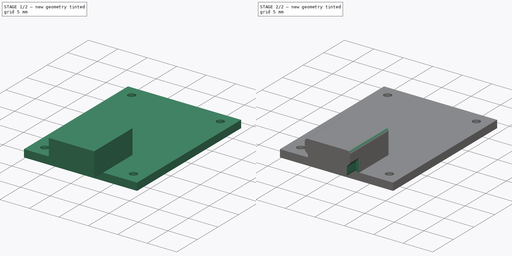
[diagram: build sequence overview — one tinted view per stage of 2, left to right]
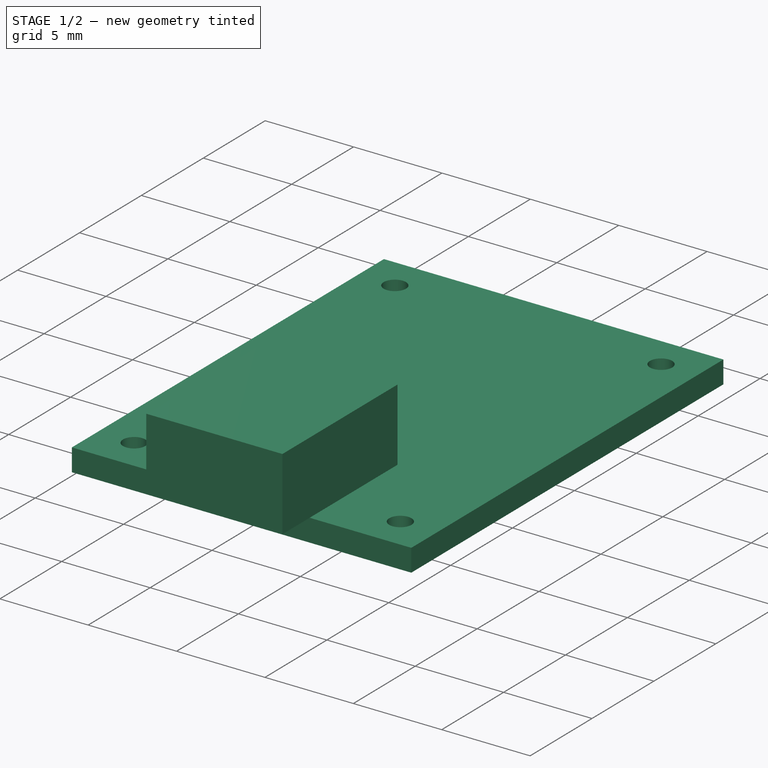
[diagram: stage 1 of 2 — iso view after this stage's code; geometry added in this stage tinted green]
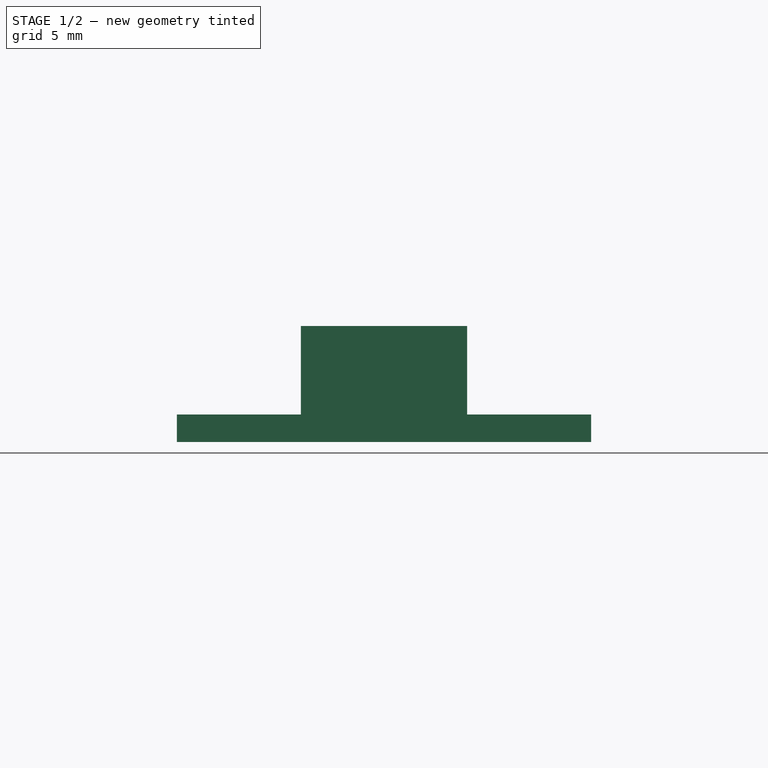
[diagram: stage 1 of 2 — front view after this stage's code; geometry added in this stage tinted green]
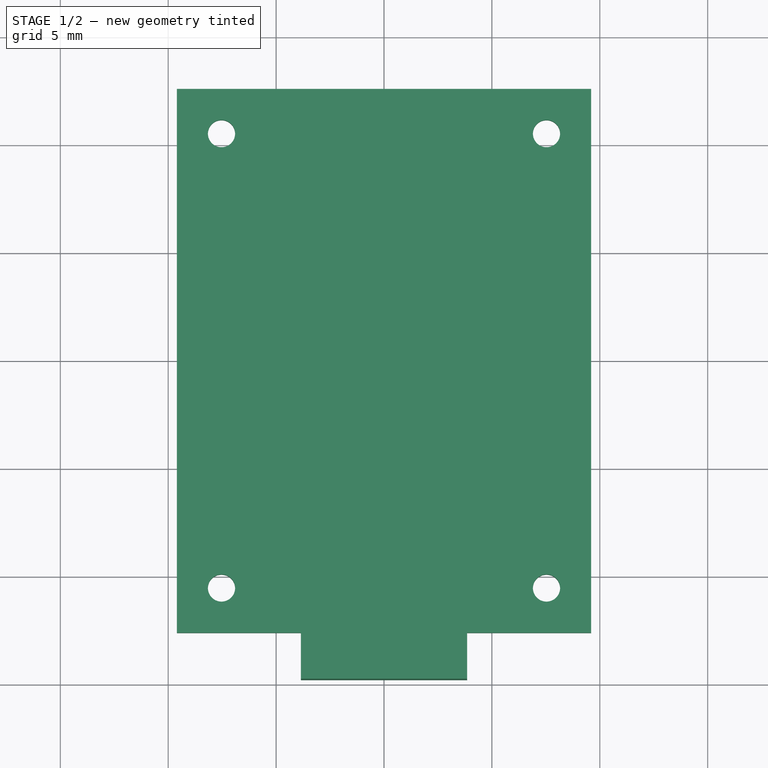
[diagram: stage 1 of 2 — top view after this stage's code; geometry added in this stage tinted green]
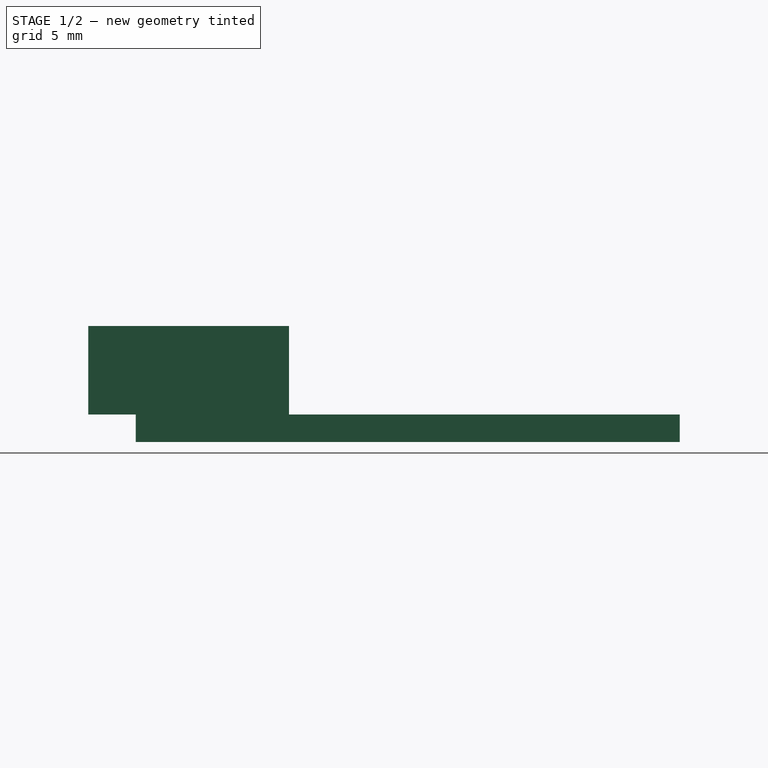
[diagram: stage 1 of 2 — right view after this stage's code; geometry added in this stage tinted green]
FCSTD DOCUMENT  (FreeCAD 0.16R5166 (Git))
Label: battery_charger
License: CreativeCommons Attribution-ShareAlike
LicenseURL: http://creativecommons.org/licenses/by-sa/4.0/
objects: Sketcher::SketchObject×3, PartDesign::Pad×2, PartDesign::Fillet×1, PartDesign::Pocket×1
note: 10 computed .brp shape members not serialized (recipe doc carries the construction recipe); baked Part::Feature solids carry a one-line shape summary decoded from their .brp

FEATURE [Sketcher::SketchObject] Sketch
  sketch-geometry (8):
    g0: LineSegment StartX=-9.6 StartY=12.605 StartZ=0 EndX=9.6 EndY=12.605 EndZ=0
    g1: LineSegment StartX=9.6 StartY=12.605 StartZ=0 EndX=9.6 EndY=-12.605 EndZ=0
    g2: LineSegment StartX=9.6 StartY=-12.605 StartZ=0 EndX=-9.6 EndY=-12.605 EndZ=0
    g3: LineSegment StartX=-9.6 StartY=-12.605 StartZ=0 EndX=-9.6 EndY=12.605 EndZ=0
    g4: Circle CenterX=-7.53 CenterY=10.53 CenterZ=0 NormalX=0 NormalY=0 NormalZ=1 Radius=0.63
    g5: Circle CenterX=7.53 CenterY=10.53 CenterZ=0 NormalX=0 NormalY=0 NormalZ=1 Radius=0.63
    g6: Circle CenterX=7.53 CenterY=-10.53 CenterZ=0 NormalX=0 NormalY=0 NormalZ=1 Radius=0.63
    g7: Circle CenterX=-7.53 CenterY=-10.53 CenterZ=0 NormalX=0 NormalY=0 NormalZ=1 Radius=0.63
  constraints (21):
    c: Coincident(g0,g1)
    c: Coincident(g1,g2)
    c: Coincident(g2,g3)
    c: Coincident(g3,g0)
    c: Horizontal(g0)
    c: Horizontal(g2)
    c: Vertical(g1)
    c: Vertical(g3)
    c: DistanceX(g0) = 19.2
    c: DistanceY(g1) = -25.21
    c: Symmetric(g2,g0,g-1)
    c: Symmetric(g6,g4,g-1)
    c: Symmetric(g5,g7,g-1)
    c: Equal(g5,g4)
    c: Equal(g4,g7)
    c: Equal(g7,g6)
    c: Radius(g7) = 0.63
    c: Symmetric(g4,g5,g-2)
    c: Symmetric(g4,g7,g-1)
    c: DistanceX(g4,g5) = 15.06
    c: DistanceY(g4,g7) = -21.06
FEATURE [PartDesign::Pad] Pad  label="base"
  Length = 1.27
  Length2 = 100
  Midplane = true
  Sketch = -> Sketch
  Type = 0
FEATURE [Sketcher::SketchObject] Sketch001
  ExternalGeometry = -> [Pad]
  Placement = pos=(0,0,0.635) rot=(0,0,1;0rad)
  Support = -> Pad [Face10]
  sketch-geometry (4):
    g0: LineSegment StartX=-3.85 StartY=-5.505 StartZ=0 EndX=3.85 EndY=-5.505 EndZ=0
    g1: LineSegment StartX=3.85 StartY=-5.505 StartZ=0 EndX=3.85 EndY=-14.805 EndZ=0
    g2: LineSegment StartX=3.85 StartY=-14.805 StartZ=0 EndX=-3.85 EndY=-14.805 EndZ=0
    g3: LineSegment StartX=-3.85 StartY=-14.805 StartZ=0 EndX=-3.85 EndY=-5.505 EndZ=0
  constraints (12):
    c: Coincident(g0,g1)
    c: Coincident(g1,g2)
    c: Coincident(g2,g3)
    c: Coincident(g3,g0)
    c: Horizontal(g0)
    c: Horizontal(g2)
    c: Vertical(g1)
    c: Vertical(g3)
    c: Symmetric(g2,g1,g-2)
    c: DistanceY(g1) = -9.3
    c: DistanceX(g2) = -7.7
    c: DistanceY(g2,g-3) = 2.2
FEATURE [PartDesign::Pad] Pad001  label="battery_charger_c"
  Length = 4.1
  Length2 = 100
  Sketch = -> Sketch001
  Type = 0
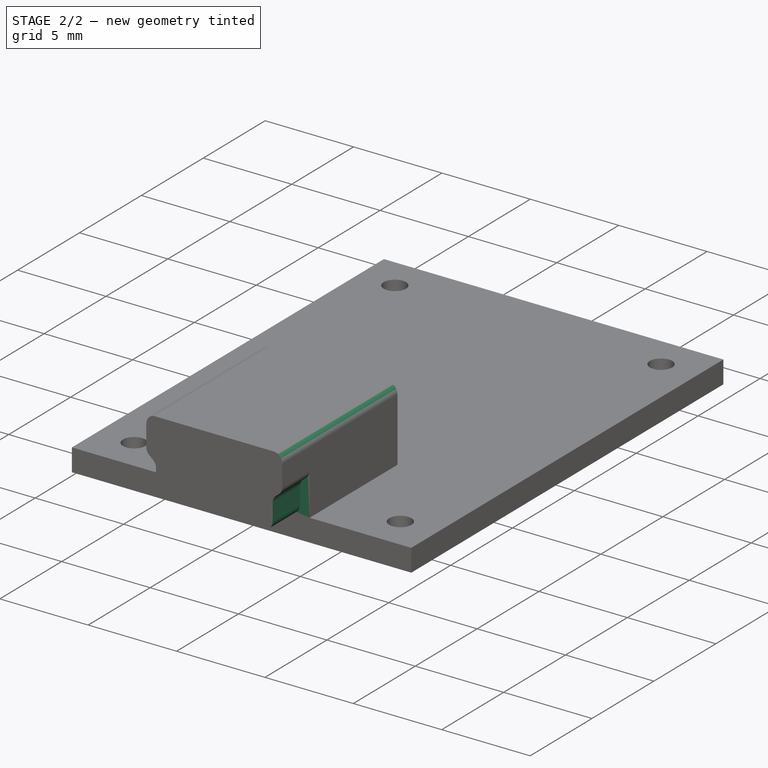
[diagram: stage 2 of 2 — iso view after this stage's code; geometry added in this stage tinted green]
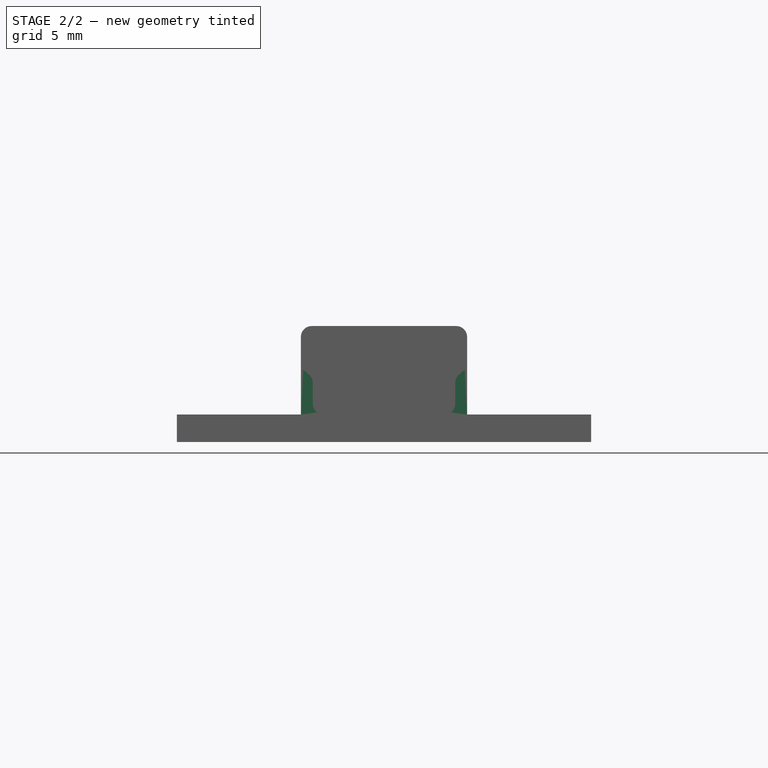
[diagram: stage 2 of 2 — front view after this stage's code; geometry added in this stage tinted green]
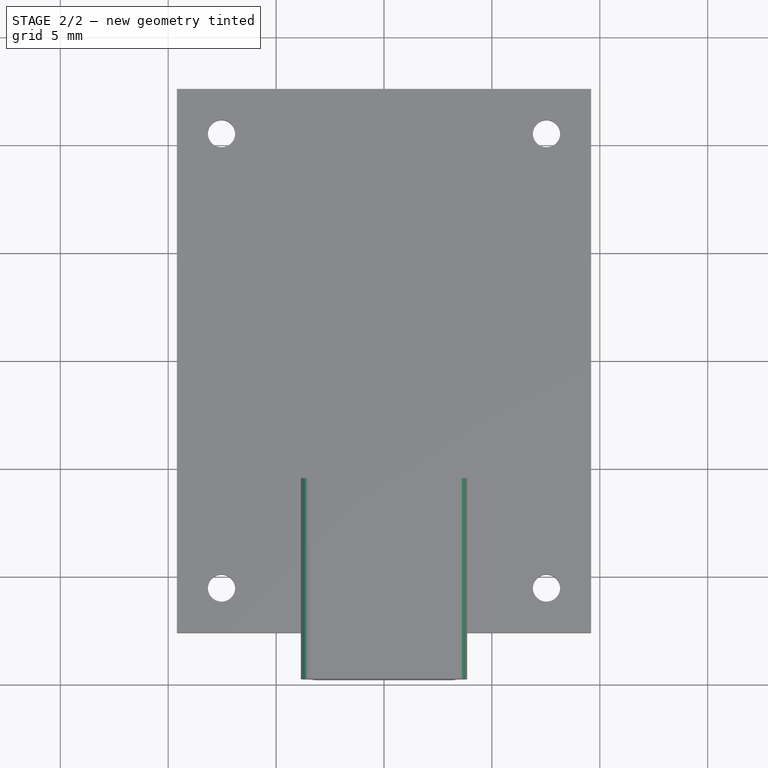
[diagram: stage 2 of 2 — top view after this stage's code; geometry added in this stage tinted green]
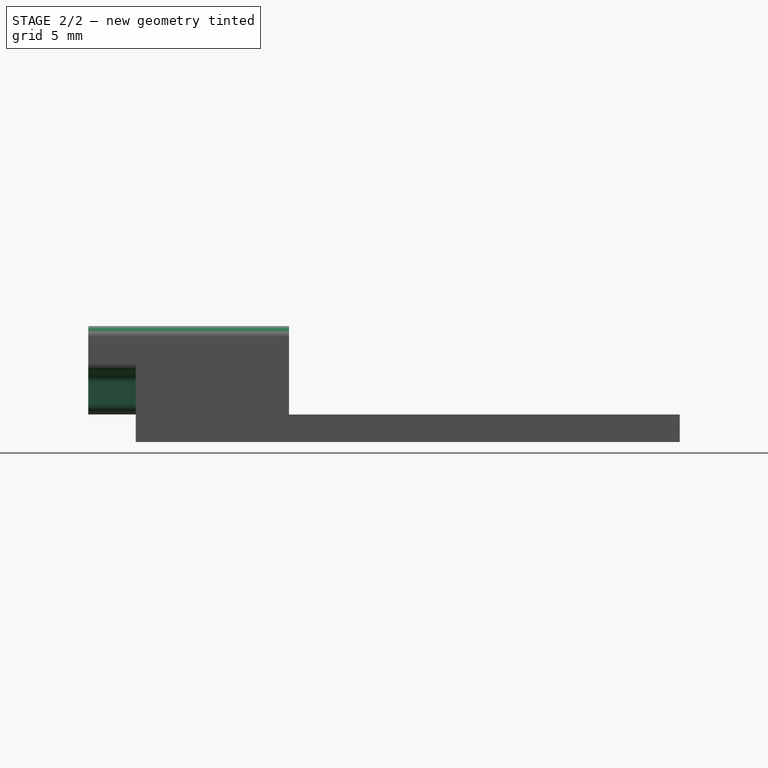
[diagram: stage 2 of 2 — right view after this stage's code; geometry added in this stage tinted green]
FEATURE [PartDesign::Fillet] Fillet
  Base = -> Pad001 [Edge38,Edge31]
  Radius = 0.5
FEATURE [Sketcher::SketchObject] Sketch002
  ExternalGeometry = -> [Fillet]
  Placement = pos=(0,-14.805,0) rot=(1,0,0;1.5708rad)
  Support = -> Fillet [Face5]
  sketch-geometry (18):
    g0: LineSegment StartX=-3.85 StartY=4.735 StartZ=0 EndX=-3.85 EndY=3.035 EndZ=0
    g1: LineSegment StartX=-3.67505 StartY=2.65508 StartZ=0 EndX=-3.47495 EndY=2.48388 EndZ=0
    g2: LineSegment StartX=-3.3 StartY=2.10395 StartZ=0 EndX=-3.3 EndY=1.135 EndZ=0
    g3: LineSegment StartX=-2.8 StartY=0.635 StartZ=0 EndX=2.8 EndY=0.635 EndZ=0
    g4: LineSegment StartX=3.3 StartY=1.135 StartZ=0 EndX=3.3 EndY=2.10395 EndZ=0
    g5: LineSegment StartX=3.47495 StartY=2.48388 StartZ=0 EndX=3.67505 EndY=2.65508 EndZ=0
    g6: LineSegment StartX=3.85 StartY=3.035 StartZ=0 EndX=3.85 EndY=4.735 EndZ=0
    g7: LineSegment StartX=3.85 StartY=4.735 StartZ=0 EndX=-3.85 EndY=4.735 EndZ=0
    g8: ArcOfCircle CenterX=-3.35 CenterY=3.035 CenterZ=0 NormalX=0 NormalY=0 NormalZ=1 Radius=0.5 StartAngle=3.14159 EndAngle=4.00467
    g9: ArcOfCircle CenterX=3.35 CenterY=3.035 CenterZ=0 NormalX=0 NormalY=0 NormalZ=1 Radius=0.5 StartAngle=5.4201 EndAngle=6.28319
    g10: ArcOfCircle CenterX=-3.8 CenterY=2.10395 CenterZ=0 NormalX=0 NormalY=0 NormalZ=1 Radius=0.5 StartAngle=0 EndAngle=0.863082
    g11: ArcOfCircle CenterX=3.8 CenterY=2.10395 CenterZ=0 NormalX=0 NormalY=0 NormalZ=1 Radius=0.5 StartAngle=2.27851 EndAngle=3.14159
    g12: ArcOfCircle CenterX=2.8 CenterY=1.135 CenterZ=0 NormalX=0 NormalY=0 NormalZ=1 Radius=0.5 StartAngle=4.71239 EndAngle=6.28319
    g13: ArcOfCircle CenterX=-2.8 CenterY=1.135 CenterZ=0 NormalX=0 NormalY=0 NormalZ=1 Radius=0.5 StartAngle=3.14159 EndAngle=4.71239
    g14: LineSegment StartX=-4.301 StartY=4.99032 StartZ=0 EndX=4.24976 EndY=4.99032 EndZ=0
    g15: LineSegment StartX=4.24976 StartY=4.99032 StartZ=0 EndX=4.24976 EndY=0.216493 EndZ=0
    g16: LineSegment StartX=4.24976 StartY=0.216493 StartZ=0 EndX=-4.301 EndY=0.216493 EndZ=0
    g17: LineSegment StartX=-4.301 StartY=0.216493 StartZ=0 EndX=-4.301 EndY=4.99032 EndZ=0
  constraints (43):
    c: Vertical(g0)
    c: Vertical(g2)
    c: Horizontal(g3)
    c: Vertical(g6)
    c: Coincident(g6,g7)
    c: Coincident(g7,g0)
    c: Vertical(g4)
    c: Symmetric(g6,g0,g-2)
    c: DistanceX(g7) = -7.7
    c: PointOnObject(g0,g-4)
    c: Tangent(g0,g8) = -1.5708
    c: Tangent(g1,g8) = -1.5708
    c: Tangent(g6,g9) = -1.5708
    c: Tangent(g5,g9) = -1.5708
    c: Tangent(g1,g10) = 1.5708
    c: Tangent(g2,g10) = 1.5708
    c: Tangent(g5,g11) = 1.5708
    c: Tangent(g4,g11) = 1.5708
    c: Tangent(g3,g12) = -1.5708
    c: Tangent(g4,g12) = -1.5708
    c: Tangent(g2,g13) = -1.5708
    c: Tangent(g3,g13) = -1.5708
    c: Equal(g8,g10)
    c: Equal(g10,g13)
    c: Equal(g12,g11)
    c: Equal(g11,g9)
    c: PointOnObject(g3,g-3)
    c: Radius(g8) = 0.5
    c: DistanceX(g2,g4) = 6.6
    c: Equal(g0,g6)
    c: Equal(g2,g4)
    c: Symmetric(g2,g4,g-2)
    c: Equal(g1,g5)
    c: DistanceY(g0,g-3) = -2.4
    c: Equal(g1,g5)
    c: Coincident(g14,g15)
    c: Coincident(g15,g16)
    c: Coincident(g16,g17)
    c: Coincident(g17,g14)
    c: Horizontal(g14)
    c: Horizontal(g16)
    c: Vertical(g15)
    c: Vertical(g17)
FEATURE [PartDesign::Pocket] Pocket  label="battery_charger"
  Length = 2.2
  Sketch = -> Sketch002
  Type = 0
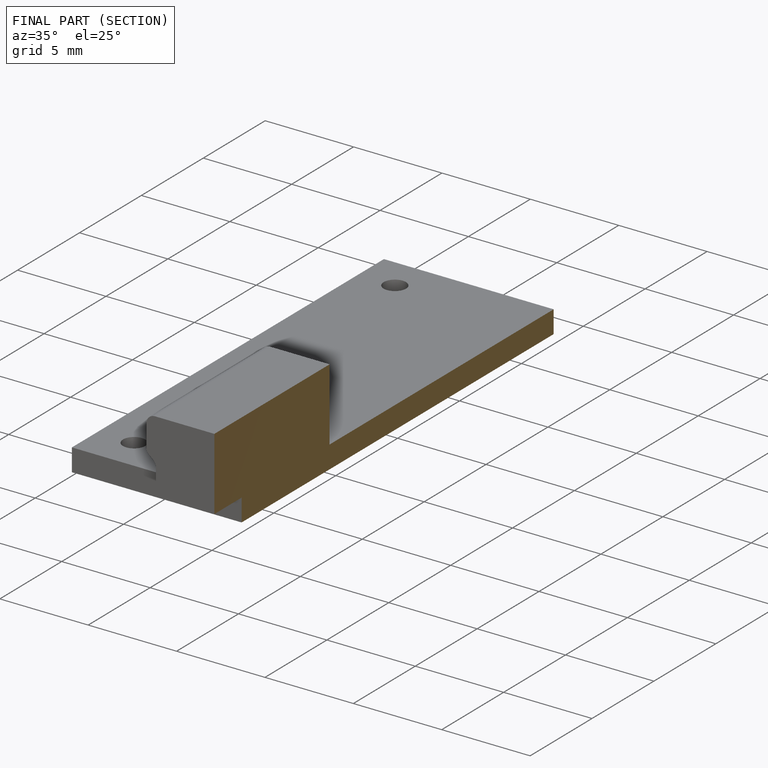
[diagram: finished part — half-section view (interior)]
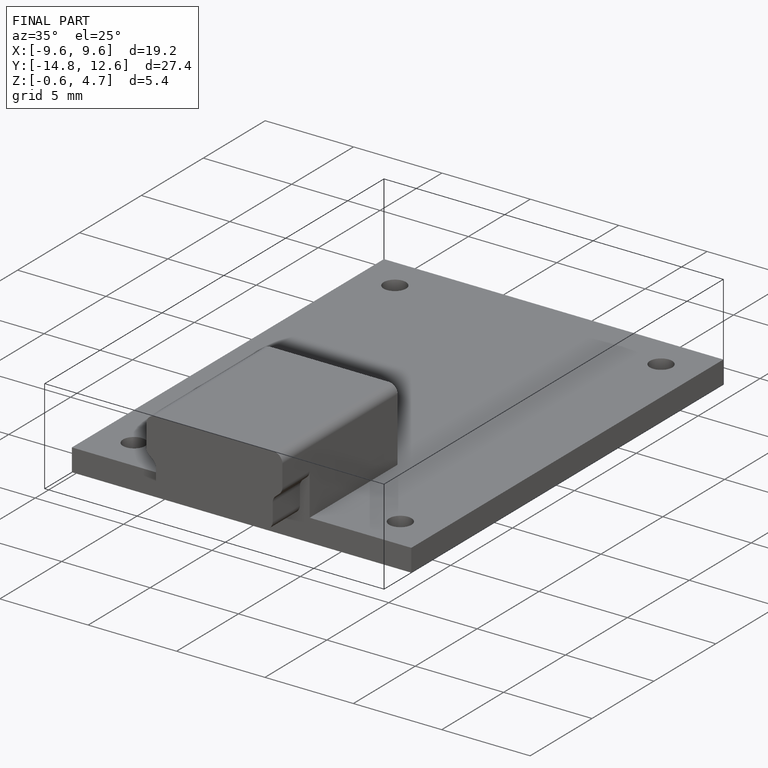
[diagram: finished part — iso view with bounding-box wireframe]
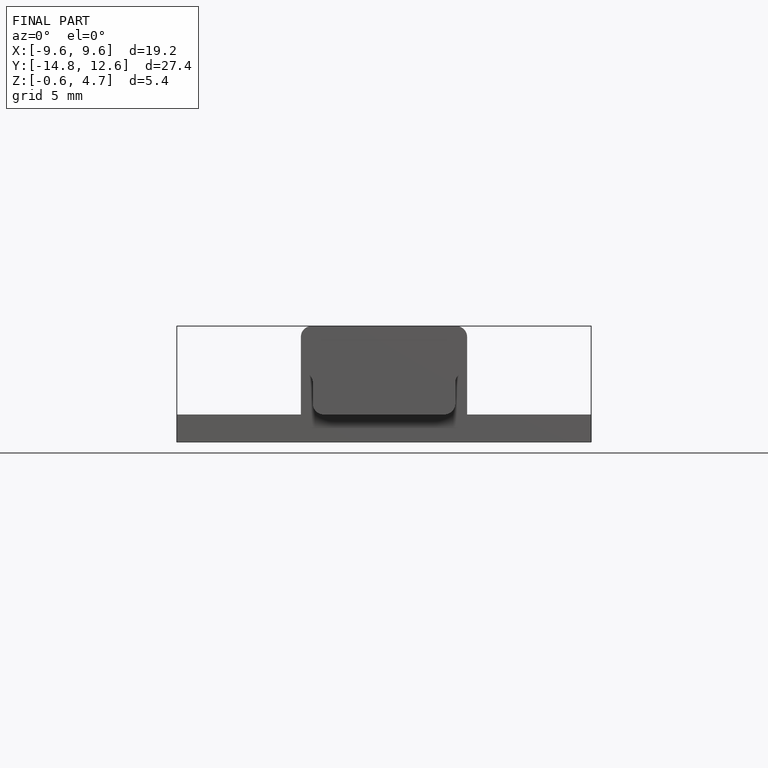
[diagram: finished part — front view with bounding-box wireframe]
